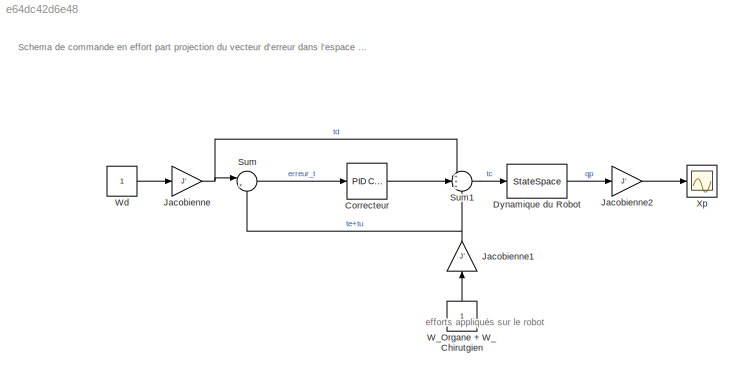
MODEL slx_e64dc42d6e48
KIND model
CONFIG AbsTol = auto
CONFIG EnableMultiTasking = off
CONFIG FixedStep = auto
CONFIG MaxStep = auto
CONFIG MinStep = auto
CONFIG RelTol = 1e-3
CONFIG SampleTimeConstraint = Unconstrained
CONFIG SolverName = VariableStepAuto
CONFIG StartTime = 0.0
CONFIG StopTime = 10.0
BLOCK [Reference] Correcteur  REF=slpidlib/PID Controller
  Ports = [1, 1]
  SourceBlock = slpidlib/PID Controller
  SourceProductBaseCode = SL
  SourceType = PID 1dof
BLOCK [StateSpace] Dynamique du Robot
  InitialCondition = 0
  Ports = [1, 1]
BLOCK [Gain] Jacobienne
  Gain = J'
BLOCK [Gain] Jacobienne1
  Gain = J'
  NameLocation = right
BLOCK [Gain] Jacobienne2
  Gain = J'
BLOCK [Sum] Sum
  Inputs = |+-
  Ports = [2, 1]
BLOCK [Sum] Sum1
  Inputs = +++
  Ports = [3, 1]
BLOCK [Constant] W_Organe + W_Chirutgien
  NameLocation = right
BLOCK [Constant] Wd
BLOCK [Scope] Xp
  Floating = off
  NumInputPorts = 1
  Ports = [1]
  ScopeSpecificationString = Simulink.scopes.TimeScopeBlockCfg('CurrentConfiguration', extmgr.ConfigurationSet(extmgr.Configuration('Core','General UI',true),extmgr.Configuration('Core','Source UI',true),extmgr.Configuration('Sources','WiredSimulink',true),extmgr.Configuration('Visuals','Time Domain',true),extmgr.Configuration('Tools','Plot Navigation',true),extmgr.Configuration('Tools','Measurements',true)),'Version','2020b'...<+1ch>
ANNOTATION (root): Schema de commande en effort part projection du vecteur d'erreur dans l'espace articulaire
ANNOTATION (root): efforts appliqués sur le robot
LINE Correcteur:1 -> Sum1:2
LINE Dynamique du Robot:1 -> Jacobienne2:1
NET Jacobienne1:1 -> Sum1:3, Sum:2
LINE Jacobienne2:1 -> Xp:1
NET Jacobienne:1 -> Sum1:1, Sum:1
LINE Sum1:1 -> Dynamique du Robot:1
LINE Sum:1 -> Correcteur:1
LINE W_Organe + W_Chirutgien:1 -> Jacobienne1:1
LINE Wd:1 -> Jacobienne:1
note: NET lines group one-source signal fan-out (src -> all destinations, sorted); 1:1 wires keep LINE
